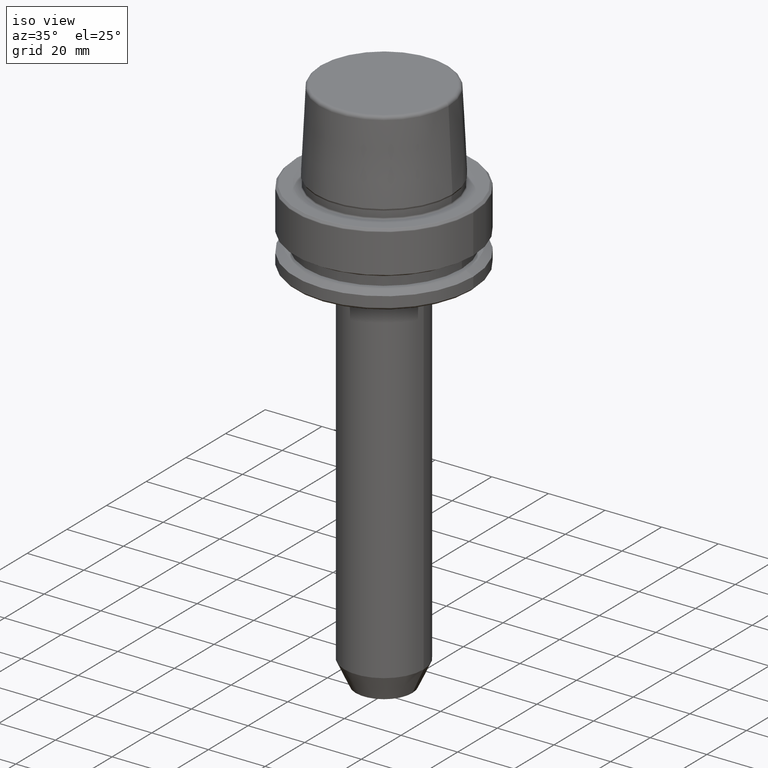
[diagram: clean part render]
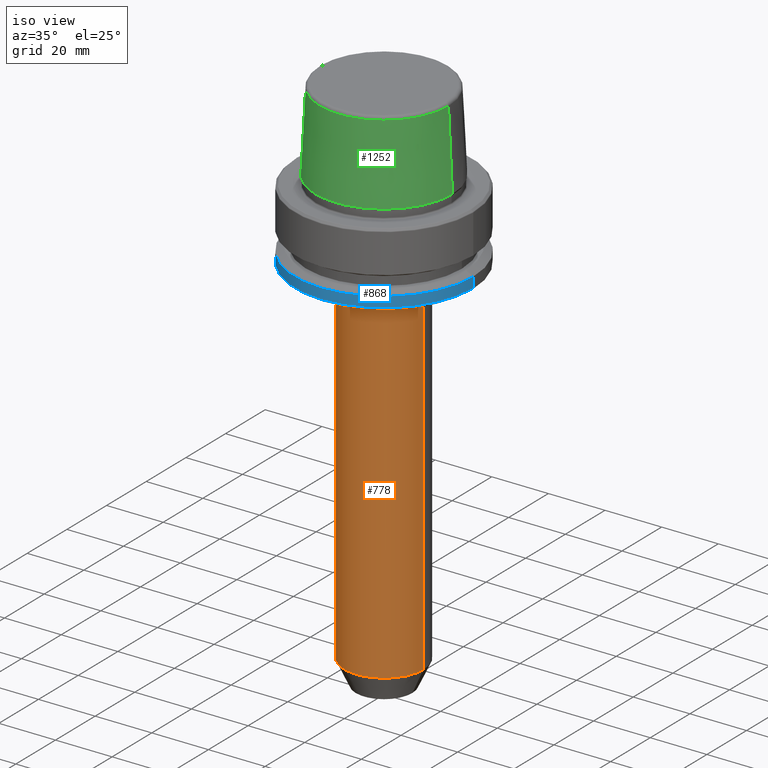
[diagram: same view with three faces highlighted in distinct colors, each labeled with its STEP entity id]
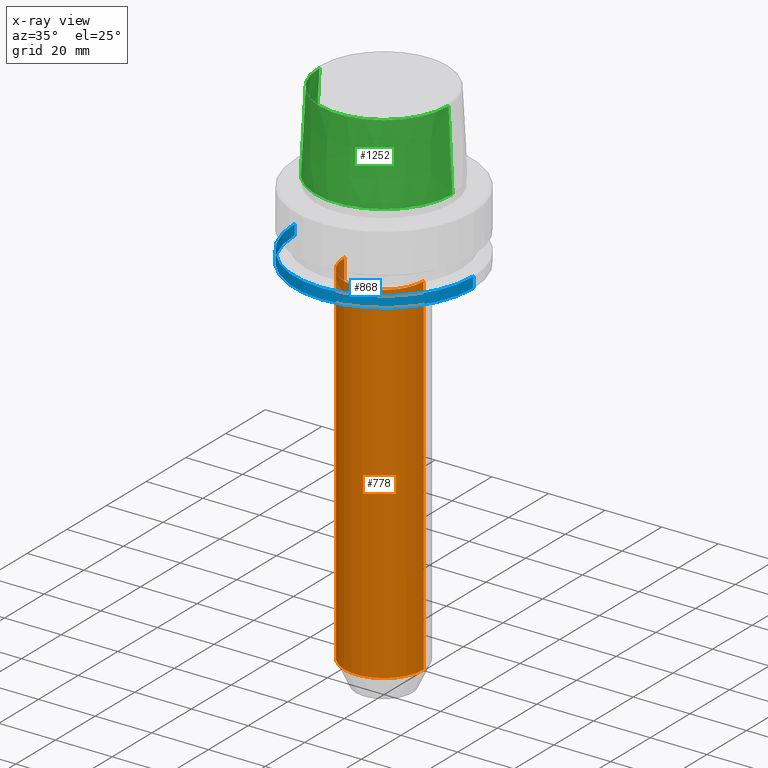
[diagram: x-ray of the same camera — body ghosted, the three highlighted faces saturated]
A machine part, iso view with three faces highlighted in distinct colors.
The next image is the same camera in x-ray (body ghosted, the three faces saturated) — at least one of them is partly hidden behind the body in this view.
Their STEP definitions:

[orange] entity #778 — the highlighted cylindrical surface (partial cylindrical patch) has radius 14 mm, axis along (-0, -0, 1).
#34 = CARTESIAN_POINT ( 'NONE',  ( 0.0000000000000000000, 0.0000000000000000000, -27.50000000000001100 ) ) ;
#47 = DIRECTION ( 'NONE',  ( -0.0000000000000000000, -0.0000000000000000000, 1.000000000000000000 ) ) ;
#52 = ORIENTED_EDGE ( 'NONE', *, *, #232, .T. ) ;
#90 = DIRECTION ( 'NONE',  ( 1.000000000000000000, 0.0000000000000000000, 0.0000000000000000000 ) ) ;
#140 = ORIENTED_EDGE ( 'NONE', *, *, #747, .F. ) ;
#196 = EDGE_LOOP ( 'NONE', ( #140, #52, #284, #267 ) ) ;
#232 = EDGE_CURVE ( 'NONE', #963, #468, #1059, .T. ) ;
#250 = CARTESIAN_POINT ( 'NONE',  ( -14.00000000000000000, 1.714505518806294600E-015, -151.4219723179616600 ) ) ;
#261 = LINE ( 'NONE', #322, #749 ) ;
#267 = ORIENTED_EDGE ( 'NONE', *, *, #1053, .T. ) ;
#275 = AXIS2_PLACEMENT_3D ( 'NONE', #863, #1081, #567 ) ;
#284 = ORIENTED_EDGE ( 'NONE', *, *, #612, .T. ) ;
#322 = CARTESIAN_POINT ( 'NONE',  ( -14.00000000000000000, 1.714505518806294600E-015, 31.31059451800105700 ) ) ;
#380 = CARTESIAN_POINT ( 'NONE',  ( 0.0000000000000000000, 0.0000000000000000000, 31.31059451800105700 ) ) ;
#398 = VERTEX_POINT ( 'NONE', #788 ) ;
#408 = DIRECTION ( 'NONE',  ( 0.0000000000000000000, 0.0000000000000000000, -1.000000000000000000 ) ) ;
#421 = CARTESIAN_POINT ( 'NONE',  ( 14.00000000000000000, 0.0000000000000000000, -151.4219723179616600 ) ) ;
#425 = CYLINDRICAL_SURFACE ( 'NONE', #429, 14.00000000000000000 ) ;
#429 = AXIS2_PLACEMENT_3D ( 'NONE', #380, #47, #90 ) ;
#430 = CARTESIAN_POINT ( 'NONE',  ( 14.00000000000000000, 0.0000000000000000000, 31.31059451800105700 ) ) ;
#447 = DIRECTION ( 'NONE',  ( -0.0000000000000000000, -0.0000000000000000000, 1.000000000000000000 ) ) ;
#468 = VERTEX_POINT ( 'NONE', #421 ) ;
#567 = DIRECTION ( 'NONE',  ( 1.000000000000000000, 0.0000000000000000000, 0.0000000000000000000 ) ) ;
#612 = EDGE_CURVE ( 'NONE', #468, #398, #768, .T. ) ;
#634 = VECTOR ( 'NONE', #1253, 1000.000000000000000 ) ;
#643 = CARTESIAN_POINT ( 'NONE',  ( -14.00000000000000000, 1.714505518806294600E-015, -27.50000000000001100 ) ) ;
#686 = VERTEX_POINT ( 'NONE', #643 ) ;
#710 = CIRCLE ( 'NONE', #1240, 14.00000000000000000 ) ;
#747 = EDGE_CURVE ( 'NONE', #963, #686, #261, .T. ) ;
#749 = VECTOR ( 'NONE', #447, 1000.000000000000000 ) ;
#768 = LINE ( 'NONE', #430, #634 ) ;
#772 = DIRECTION ( 'NONE',  ( 1.000000000000000000, 0.0000000000000000000, 0.0000000000000000000 ) ) ;
#778 = ADVANCED_FACE ( 'NONE', ( #1120 ), #425, .T. ) ;
#788 = CARTESIAN_POINT ( 'NONE',  ( 14.00000000000000000, 0.0000000000000000000, -27.50000000000001100 ) ) ;
#863 = CARTESIAN_POINT ( 'NONE',  ( 0.0000000000000000000, 0.0000000000000000000, -151.4219723179616600 ) ) ;
#963 = VERTEX_POINT ( 'NONE', #250 ) ;
#1053 = EDGE_CURVE ( 'NONE', #398, #686, #710, .T. ) ;
#1059 = CIRCLE ( 'NONE', #275, 14.00000000000000000 ) ;
#1081 = DIRECTION ( 'NONE',  ( -0.0000000000000000000, -0.0000000000000000000, 1.000000000000000000 ) ) ;
#1120 = FACE_OUTER_BOUND ( 'NONE', #196, .T. ) ;
#1240 = AXIS2_PLACEMENT_3D ( 'NONE', #34, #408, #772 ) ;
#1253 = DIRECTION ( 'NONE',  ( -0.0000000000000000000, -0.0000000000000000000, 1.000000000000000000 ) ) ;

[blue] entity #868 — the highlighted cylindrical surface (partial cylindrical patch) has radius 31.5 mm, axis along (-0, -0, 1).
#6 = DIRECTION ( 'NONE',  ( -0.0000000000000000000, -0.0000000000000000000, 1.000000000000000000 ) ) ;
#30 = VERTEX_POINT ( 'NONE', #358 ) ;
#31 = CARTESIAN_POINT ( 'NONE',  ( 0.0000000000000000000, 0.0000000000000000000, 78.96908074195309300 ) ) ;
#49 = CARTESIAN_POINT ( 'NONE',  ( -31.50000000000000000, 3.857637417314162700E-015, -21.37749907475931700 ) ) ;
#147 = AXIS2_PLACEMENT_3D ( 'NONE', #31, #631, #350 ) ;
#179 = CARTESIAN_POINT ( 'NONE',  ( 0.0000000000000000000, 0.0000000000000000000, -25.03431457505077200 ) ) ;
#187 = VERTEX_POINT ( 'NONE', #49 ) ;
#206 = CARTESIAN_POINT ( 'NONE',  ( 0.0000000000000000000, 0.0000000000000000000, -21.37749907475931700 ) ) ;
#216 = CARTESIAN_POINT ( 'NONE',  ( 31.50000000000000000, 0.0000000000000000000, 78.96908074195309300 ) ) ;
#224 = CIRCLE ( 'NONE', #530, 31.50000000000000000 ) ;
#243 = CIRCLE ( 'NONE', #951, 31.50000000000000000 ) ;
#289 = VECTOR ( 'NONE', #835, 1000.000000000000000 ) ;
#321 = CARTESIAN_POINT ( 'NONE',  ( -31.50000000000000000, 3.857637417314161900E-015, -25.03431457505077200 ) ) ;
#324 = ORIENTED_EDGE ( 'NONE', *, *, #916, .F. ) ;
#350 = DIRECTION ( 'NONE',  ( 1.000000000000000000, 0.0000000000000000000, 0.0000000000000000000 ) ) ;
#358 = CARTESIAN_POINT ( 'NONE',  ( 31.50000000000000000, 0.0000000000000000000, -21.37749907475931700 ) ) ;
#382 = DIRECTION ( 'NONE',  ( -0.0000000000000000000, -0.0000000000000000000, 1.000000000000000000 ) ) ;
#394 = VERTEX_POINT ( 'NONE', #842 ) ;
#530 = AXIS2_PLACEMENT_3D ( 'NONE', #206, #382, #825 ) ;
#563 = DIRECTION ( 'NONE',  ( 1.000000000000000000, 0.0000000000000000000, 0.0000000000000000000 ) ) ;
#631 = DIRECTION ( 'NONE',  ( -0.0000000000000000000, -0.0000000000000000000, 1.000000000000000000 ) ) ;
#649 = FACE_OUTER_BOUND ( 'NONE', #721, .T. ) ;
#666 = LINE ( 'NONE', #1097, #289 ) ;
#667 = EDGE_CURVE ( 'NONE', #1242, #187, #666, .T. ) ;
#721 = EDGE_LOOP ( 'NONE', ( #1109, #1088, #771, #324 ) ) ;
#741 = DIRECTION ( 'NONE',  ( -0.0000000000000000000, -0.0000000000000000000, 1.000000000000000000 ) ) ;
#769 = VECTOR ( 'NONE', #6, 1000.000000000000000 ) ;
#771 = ORIENTED_EDGE ( 'NONE', *, *, #922, .T. ) ;
#799 = LINE ( 'NONE', #216, #769 ) ;
#825 = DIRECTION ( 'NONE',  ( 1.000000000000000000, 0.0000000000000000000, 0.0000000000000000000 ) ) ;
#835 = DIRECTION ( 'NONE',  ( -0.0000000000000000000, -0.0000000000000000000, 1.000000000000000000 ) ) ;
#842 = CARTESIAN_POINT ( 'NONE',  ( 31.50000000000000000, 0.0000000000000000000, -25.03431457505077200 ) ) ;
#868 = ADVANCED_FACE ( 'NONE', ( #649 ), #1139, .T. ) ;
#916 = EDGE_CURVE ( 'NONE', #187, #30, #224, .T. ) ;
#922 = EDGE_CURVE ( 'NONE', #394, #30, #799, .T. ) ;
#951 = AXIS2_PLACEMENT_3D ( 'NONE', #179, #741, #563 ) ;
#1088 = ORIENTED_EDGE ( 'NONE', *, *, #1236, .T. ) ;
#1097 = CARTESIAN_POINT ( 'NONE',  ( -31.50000000000000000, 3.857637417314162700E-015, 78.96908074195309300 ) ) ;
#1109 = ORIENTED_EDGE ( 'NONE', *, *, #667, .F. ) ;
#1139 = CYLINDRICAL_SURFACE ( 'NONE', #147, 31.50000000000000000 ) ;
#1236 = EDGE_CURVE ( 'NONE', #1242, #394, #243, .T. ) ;
#1242 = VERTEX_POINT ( 'NONE', #321 ) ;

[green] entity #1252 — the highlighted conical surface has half-angle 2.868 deg.
#22 = LINE ( 'NONE', #51, #1027 ) ;
#51 = CARTESIAN_POINT ( 'NONE',  ( 24.17032625081241900, 2.960011267740467600E-015, 3.000000000000002700 ) ) ;
#98 = CARTESIAN_POINT ( 'NONE',  ( 0.0000000000000000000, 0.0000000000000000000, 3.000000000000002700 ) ) ;
#158 = CARTESIAN_POINT ( 'NONE',  ( 0.0000000000000000000, 0.0000000000000000000, 3.000000000000002700 ) ) ;
#173 = CARTESIAN_POINT ( 'NONE',  ( -22.77957961851797100, 0.0000000000000000000, 30.76004333261571900 ) ) ;
#210 = DIRECTION ( 'NONE',  ( -0.0000000000000000000, -0.0000000000000000000, 1.000000000000000000 ) ) ;
#239 = DIRECTION ( 'NONE',  ( -1.000000000000000000, 0.0000000000000000000, 0.0000000000000000000 ) ) ;
#293 = ORIENTED_EDGE ( 'NONE', *, *, #818, .T. ) ;
#295 = LINE ( 'NONE', #317, #1184 ) ;
#317 = CARTESIAN_POINT ( 'NONE',  ( -24.17032625081241900, 0.0000000000000000000, 3.000000000000002700 ) ) ;
#374 = DIRECTION ( 'NONE',  ( -0.05003611051310812000, 0.0000000000000000000, -0.9987474093306675200 ) ) ;
#375 = EDGE_CURVE ( 'NONE', #971, #913, #22, .T. ) ;
#384 = CARTESIAN_POINT ( 'NONE',  ( 0.0000000000000000000, 0.0000000000000000000, 30.76004333261571900 ) ) ;
#402 = AXIS2_PLACEMENT_3D ( 'NONE', #384, #210, #1087 ) ;
#416 = DIRECTION ( 'NONE',  ( 0.0000000000000000000, 0.0000000000000000000, -1.000000000000000000 ) ) ;
#470 = EDGE_LOOP ( 'NONE', ( #627, #561, #1256, #293 ) ) ;
#479 = CONICAL_SURFACE ( 'NONE', #1213, 24.17032625081241900, 0.05005701257456005000 ) ;
#561 = ORIENTED_EDGE ( 'NONE', *, *, #906, .F. ) ;
#613 = AXIS2_PLACEMENT_3D ( 'NONE', #98, #665, #614 ) ;
#614 = DIRECTION ( 'NONE',  ( 1.000000000000000000, 0.0000000000000000000, 0.0000000000000000000 ) ) ;
#618 = CARTESIAN_POINT ( 'NONE',  ( -24.17032625081241900, 2.960011267740467600E-015, 3.000000000000002700 ) ) ;
#627 = ORIENTED_EDGE ( 'NONE', *, *, #375, .F. ) ;
#665 = DIRECTION ( 'NONE',  ( -0.0000000000000000000, -0.0000000000000000000, 1.000000000000000000 ) ) ;
#753 = FACE_OUTER_BOUND ( 'NONE', #470, .T. ) ;
#818 = EDGE_CURVE ( 'NONE', #855, #913, #1048, .T. ) ;
#855 = VERTEX_POINT ( 'NONE', #618 ) ;
#906 = EDGE_CURVE ( 'NONE', #1198, #971, #1103, .T. ) ;
#913 = VERTEX_POINT ( 'NONE', #1073 ) ;
#971 = VERTEX_POINT ( 'NONE', #1144 ) ;
#1027 = VECTOR ( 'NONE', #1146, 1000.000000000000200 ) ;
#1048 = CIRCLE ( 'NONE', #613, 24.17032625081241900 ) ;
#1073 = CARTESIAN_POINT ( 'NONE',  ( 24.17032625081241900, 0.0000000000000000000, 3.000000000000002700 ) ) ;
#1087 = DIRECTION ( 'NONE',  ( 1.000000000000000000, 0.0000000000000000000, 0.0000000000000000000 ) ) ;
#1103 = CIRCLE ( 'NONE', #402, 22.77957961851797100 ) ;
#1144 = CARTESIAN_POINT ( 'NONE',  ( 22.77957961851797100, 2.874852597157249900E-015, 30.76004333261571900 ) ) ;
#1146 = DIRECTION ( 'NONE',  ( 0.05003611051310812000, 6.127656258166108900E-018, -0.9987474093306675200 ) ) ;
#1184 = VECTOR ( 'NONE', #374, 1000.000000000000200 ) ;
#1198 = VERTEX_POINT ( 'NONE', #173 ) ;
#1213 = AXIS2_PLACEMENT_3D ( 'NONE', #158, #416, #239 ) ;
#1252 = ADVANCED_FACE ( 'NONE', ( #753 ), #479, .T. ) ;
#1255 = EDGE_CURVE ( 'NONE', #1198, #855, #295, .T. ) ;
#1256 = ORIENTED_EDGE ( 'NONE', *, *, #1255, .T. ) ;